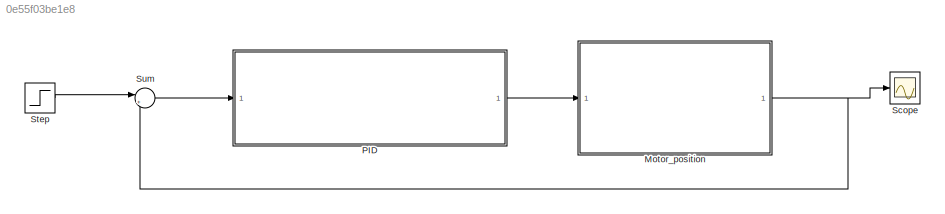
MODEL slx_0e55f03be1e8
KIND model
CONFIG AbsTol = auto
CONFIG EnableMultiTasking = off
CONFIG FixedStep = auto
CONFIG MaxStep = auto
CONFIG MinStep = auto
CONFIG RelTol = 1e-3
CONFIG SampleTimeConstraint = Unconstrained
CONFIG Solver = ode45
CONFIG SolverName = ode45
CONFIG StartTime = 0.0
CONFIG StopTime = 0.1
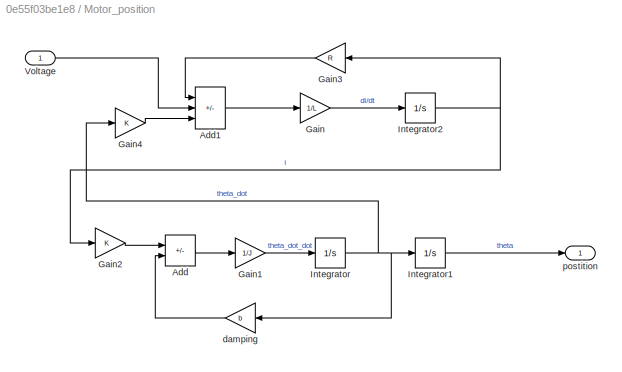
BLOCK [SubSystem] Motor_position
  Ports = [1, 1]
  RequestExecContextInheritance = off
BLOCK [Sum] Motor_position/Add
  IconShape = rectangular
  Inputs = +-
  Ports = [2, 1]
BLOCK [Sum] Motor_position/Add1
  IconShape = rectangular
  Inputs = -+-
  Ports = [3, 1]
BLOCK [Gain] Motor_position/Gain
  Gain = 1/L
BLOCK [Gain] Motor_position/Gain1
  Gain = 1/J
BLOCK [Gain] Motor_position/Gain2
  Gain = K
BLOCK [Gain] Motor_position/Gain3
  Gain = R
BLOCK [Gain] Motor_position/Gain4
  Gain = K
BLOCK [Integrator] Motor_position/Integrator
  Ports = [1, 1]
BLOCK [Integrator] Motor_position/Integrator1
  Ports = [1, 1]
BLOCK [Integrator] Motor_position/Integrator2
  Ports = [1, 1]
BLOCK [Inport] Motor_position/Voltage
BLOCK [Gain] Motor_position/damping
  Gain = b
BLOCK [Outport] Motor_position/postition
BLOCK [ModelReference] PID
  ModelNameDialog = PID0
  ModelReferenceVersion = 1.7
  Ports = [1, 1]
BLOCK [Scope] Scope
  Floating = off
  NumInputPorts = 1
  Ports = [1]
  ScopeSpecificationString = Simulink.scopes.TimeScopeBlockCfg('CurrentConfiguration', extmgr.ConfigurationSet(extmgr.Configuration('Core','General UI',true),extmgr.Configuration('Core','Source UI',true),extmgr.Configuration('Sources','WiredSimulink',true),extmgr.Configuration('Visuals','Time Domain',true,'SerializedDisplays',{struct('MinYLimReal','-0.25165','MaxYLimReal','2.26487','YLabelReal','','MinYLimMag','0.00000','MaxY...<+1402ch>
BLOCK [Step] Step
  SampleTime = 0
  Time = 0
BLOCK [Sum] Sum
  Inputs = |+-
  Ports = [2, 1]
LINE Motor_position/Add1:1 -> Motor_position/Gain:1
LINE Motor_position/Add:1 -> Motor_position/Gain1:1
LINE Motor_position/Gain1:1 -> Motor_position/Integrator:1
LINE Motor_position/Gain2:1 -> Motor_position/Add:1
LINE Motor_position/Gain3:1 -> Motor_position/Add1:1
LINE Motor_position/Gain4:1 -> Motor_position/Add1:3
LINE Motor_position/Gain:1 -> Motor_position/Integrator2:1
LINE Motor_position/Integrator1:1 -> Motor_position/postition:1
NET Motor_position/Integrator2:1 -> Motor_position/Gain2:1, Motor_position/Gain3:1
NET Motor_position/Integrator:1 -> Motor_position/Gain4:1, Motor_position/Integrator1:1, Motor_position/damping:1
LINE Motor_position/Voltage:1 -> Motor_position/Add1:2
LINE Motor_position/damping:1 -> Motor_position/Add:2
NET Motor_position:1 -> Scope:1, Sum:2
LINE PID:1 -> Motor_position:1
LINE Step:1 -> Sum:1
LINE Sum:1 -> PID:1
note: NET lines group one-source signal fan-out (src -> all destinations, sorted); 1:1 wires keep LINE
